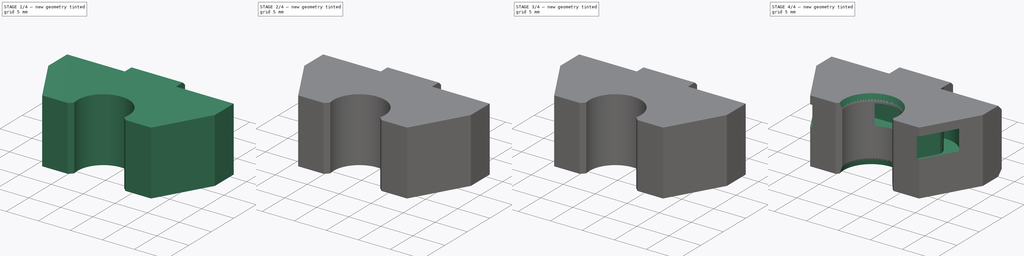
[diagram: build sequence overview — one tinted view per stage of 4, left to right]
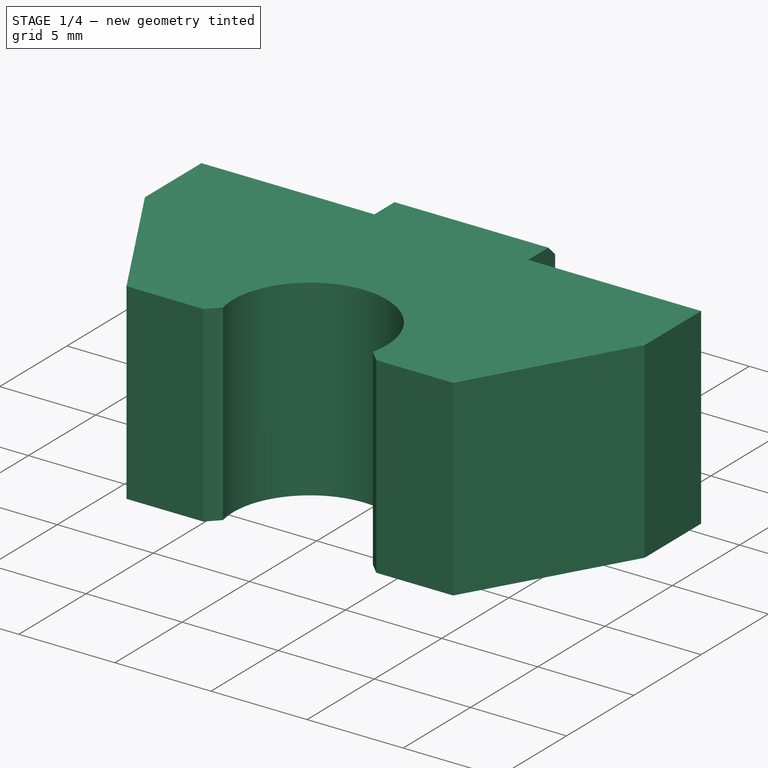
[diagram: stage 1 of 4 — iso view after this stage's code; geometry added in this stage tinted green]
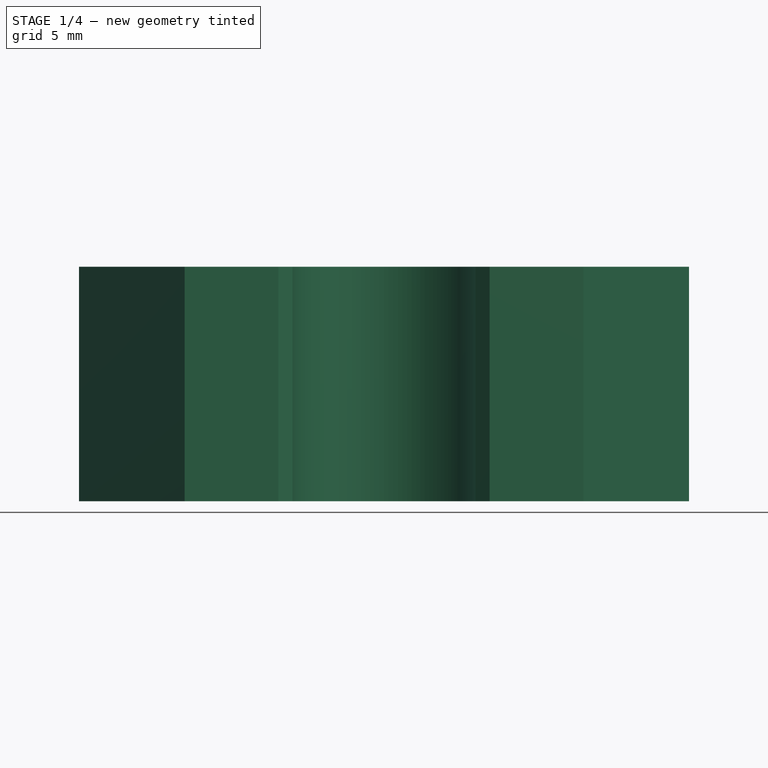
[diagram: stage 1 of 4 — front view after this stage's code; geometry added in this stage tinted green]
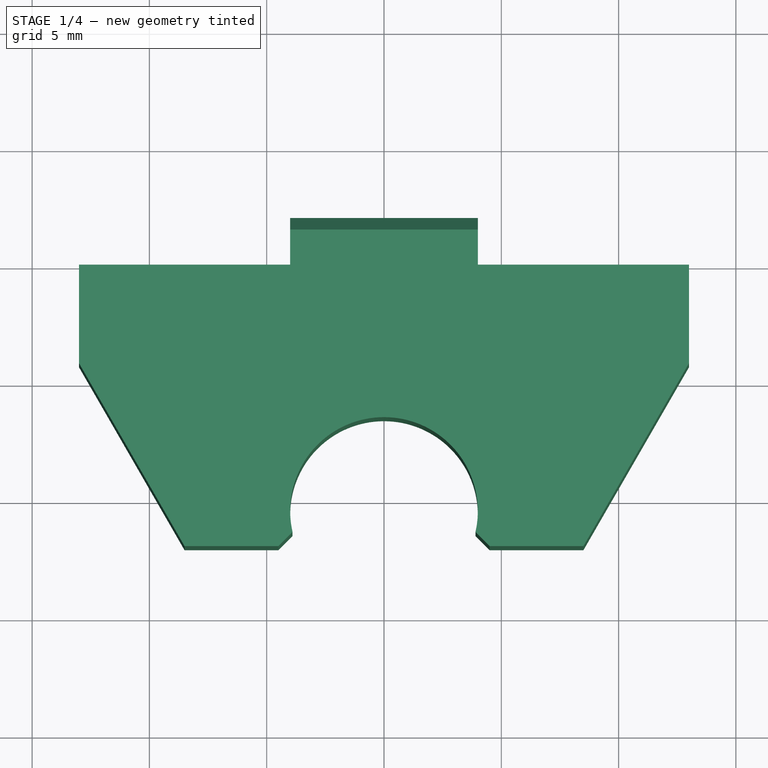
[diagram: stage 1 of 4 — top view after this stage's code; geometry added in this stage tinted green]
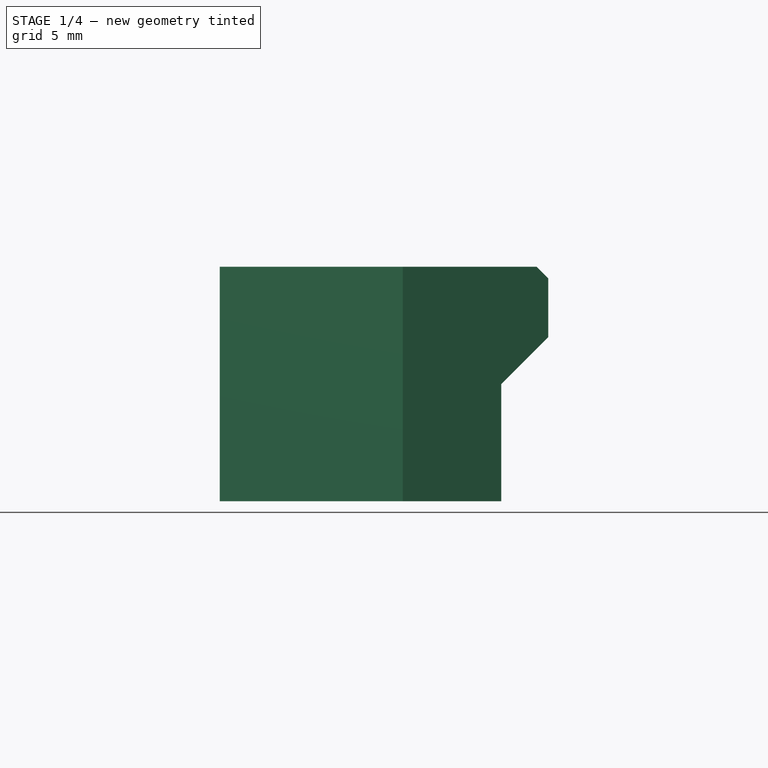
[diagram: stage 1 of 4 — right view after this stage's code; geometry added in this stage tinted green]
FCSTD DOCUMENT  (FreeCAD 0.22R38231 (Git))
Label: _Y-Rod-Holder
License: Creative Commons Attribution 4.0
LicenseURL: https://creativecommons.org/licenses/by/4.0/
objects: Sketcher::SketchObject×8, PartDesign::Pocket×7, PartDesign::Chamfer×4, PartDesign::Mirrored×2, PartDesign::Pad×1, PartDesign::Body×1
note: 49 computed .brp shape members not serialized (recipe doc carries the construction recipe); baked Part::Feature solids carry a one-line shape summary decoded from their .brp

FEATURE [Sketcher::SketchObject] Sketch
  AttachmentSupport = -> [XY_Plane]
  FullyConstrained = true
  MapMode = 5
  sketch-geometry (9):
    g0: LineSegment StartX=0 StartY=2 StartZ=0 EndX=2e-16 EndY=-6.5 EndZ=0
    g1: LineSegment StartX=-3.89792 StartY=-11.3979 StartZ=0 EndX=-4.5 EndY=-12 EndZ=0
    g2: LineSegment StartX=-4.5 StartY=-12 StartZ=0 EndX=-8.5 EndY=-12 EndZ=0
    g3: LineSegment StartX=-8.5 StartY=-12 StartZ=0 EndX=-13 EndY=-4.2 EndZ=0
    g4: LineSegment StartX=-13 StartY=-4.2 StartZ=0 EndX=-13 EndY=0 EndZ=0
    g5: LineSegment StartX=-13 StartY=0 StartZ=0 EndX=-4 EndY=0 EndZ=0
    g6: LineSegment StartX=-4 StartY=0 StartZ=0 EndX=-4 EndY=2 EndZ=0
    g7: LineSegment StartX=-4 StartY=2 StartZ=0 EndX=0 EndY=2 EndZ=0
    g8: ArcOfCircle CenterX=0 CenterY=-10.5 CenterZ=0 NormalX=0 NormalY=0 NormalZ=1 AngleXU=0 Radius=4 StartAngle=1.5708 EndAngle=3.368
  constraints (28):
    c: PointOnObject(g0,g-2)
    c: PointOnObject(g0,g-2)
    c: Coincident(g1,g2)
    c: Horizontal(g2)
    c: Coincident(g2,g3)
    c: Coincident(g3,g4)
    c: PointOnObject(g4,g-1)
    c: Vertical(g4)
    c: Coincident(g4,g5)
    c: PointOnObject(g5,g-1)
    c: Coincident(g5,g6)
    c: Vertical(g6)
    c: Coincident(g6,g7)
    c: Coincident(g7,g0)
    c: Horizontal(g7)
    c: DistanceX(g7,g7) = 4
    c: DistanceY(g4,g6) = 2
    c: DistanceX(g2,g2) = 4
    c: DistanceY(g2,g-1) = 12
    c: DistanceX(g2,g-1) = 8.5
    c: Radius(g8) = 4
    c: PointOnObject(g8,g-2)
    c: DistanceY(g8,g-1) = 10.5
    c: Coincident(g0,g8)
    c: Coincident(g1,g8)
    c: Angle(g1,g2) = 2.35619
    c: DistanceY(g4,g4) = 4.2
    c: DistanceX(g4,g-1) = 13
FEATURE [PartDesign::Pad] Pad
  Direction = (0,0,1)
  Length = 10
  Length2 = 10
  Profile = -> Sketch
  ReferenceAxis = -> Sketch [N_Axis]
  Refine = true
  Reversed = true
  Suppressed = false
  Type = 0
FEATURE [Sketcher::SketchObject] Sketch001
  AttachmentSupport = -> [YZ_Plane]
  FullyConstrained = true
  MapMode = 5
  Placement = pos=(0,0,0) rot=(0.57735,0.57735,0.57735;2.0944rad)
  sketch-geometry (7):
    g0: LineSegment StartX=4 StartY=1 StartZ=0 EndX=0.5 EndY=1 EndZ=0
    g1: LineSegment StartX=0.5 StartY=1 StartZ=0 EndX=3 EndY=-1.5 EndZ=0
    g2: LineSegment StartX=3 StartY=-1.5 StartZ=0 EndX=3 EndY=-2 EndZ=0
    g3: LineSegment StartX=3 StartY=-2 StartZ=0 EndX=0 EndY=-5 EndZ=0
    g4: LineSegment StartX=0 StartY=-5 StartZ=0 EndX=0 EndY=-11 EndZ=0
    g5: LineSegment StartX=0 StartY=-11 StartZ=0 EndX=4 EndY=-11 EndZ=0
    g6: LineSegment StartX=4 StartY=-11 StartZ=0 EndX=4 EndY=1 EndZ=0
  constraints (21):
    c: Horizontal(g0)
    c: Coincident(g0,g1)
    c: Coincident(g1,g2)
    c: Vertical(g2)
    c: Coincident(g2,g3)
    c: PointOnObject(g3,g-2)
    c: Coincident(g3,g4)
    c: PointOnObject(g4,g-2)
    c: Coincident(g4,g5)
    c: Horizontal(g5)
    c: Coincident(g5,g6)
    c: Coincident(g6,g0)
    c: Vertical(g6)
    c: DistanceX(g-1,g0) = 4
    c: DistanceX(g-1,g1) = 3
    c: DistanceY(g-1,g0) = 1
    c: Angle(g1,g0) = 0.785398
    c: DistanceX(g0,g0) = 3.5
    c: Perpendicular(g3,g1)
    c: DistanceY(g2,g2) = 0.5
    c: DistanceY(g6,g6) = 12
FEATURE [Sketcher::SketchObject] Sketch002
  AttachmentOffset = pos=(0,0,-10) rot=(0,0,1;0rad)
  AttachmentSupport = -> [XY_Plane]
  FullyConstrained = true
  MapMode = 5
  Placement = pos=(0,0,-10) rot=(0,0,1;0rad)
  sketch-geometry (1):
    g0: Circle CenterX=-5.5 CenterY=-3.5 CenterZ=0 NormalX=0 NormalY=0 NormalZ=1 AngleXU=0 Radius=1.55
  constraints (3):
    c: Diameter(g0) = 3.1
    c: DistanceX(g0,g-1) = 5.5
    c: DistanceY(g0,g-1) = 3.5
FEATURE [PartDesign::Mirrored] Mirrored
  BaseFeature = -> Pad
  MirrorPlane = -> Sketch [V_Axis]
  Originals = -> [Pad]
  Refine = true
  Suppressed = false
  TransformMode = 0
FEATURE [PartDesign::Pocket] Pocket
  BaseFeature = -> Mirrored
  Direction = (-1,0,0)
  Length = 5
  Length2 = 5
  Midplane = true
  Profile = -> Sketch001
  ReferenceAxis = -> Sketch001 [N_Axis]
  Refine = true
  Suppressed = false
  Type = 1
FEATURE [PartDesign::Pocket] Pocket001
  BaseFeature = -> Pocket
  Direction = (0,0,-1)
  Length = 7
  Length2 = 5
  Profile = -> Sketch002
  ReferenceAxis = -> Sketch002 [N_Axis]
  Refine = true
  Reversed = true
  Suppressed = false
  Type = 0
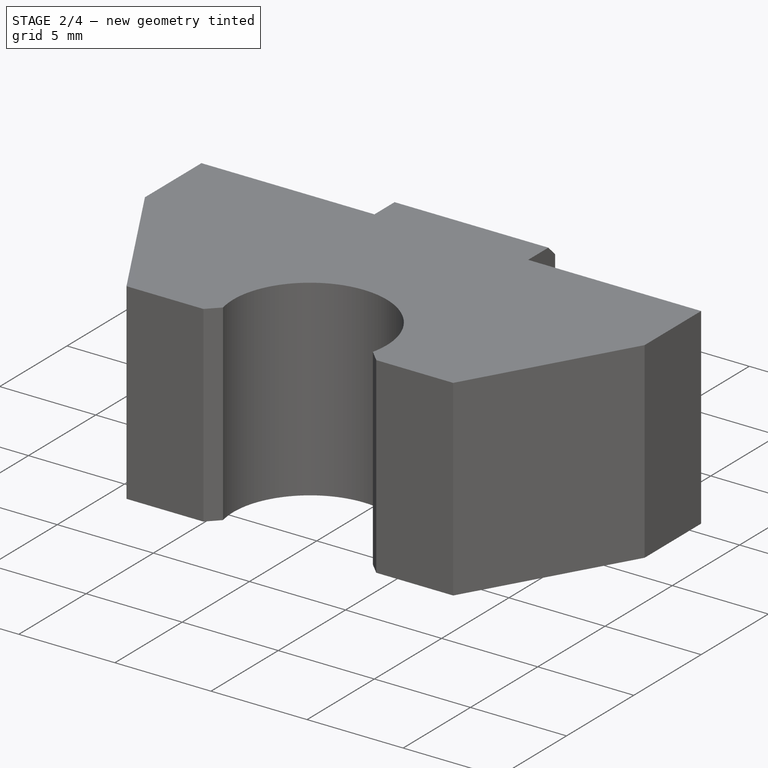
[diagram: stage 2 of 4 — iso view after this stage's code; geometry added in this stage tinted green]
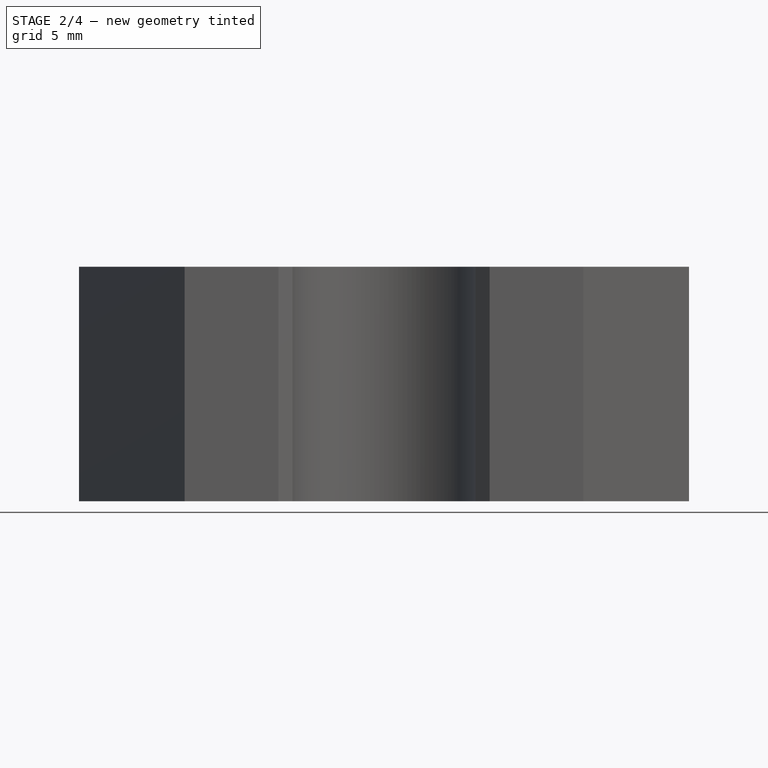
[diagram: stage 2 of 4 — front view after this stage's code; geometry added in this stage tinted green]
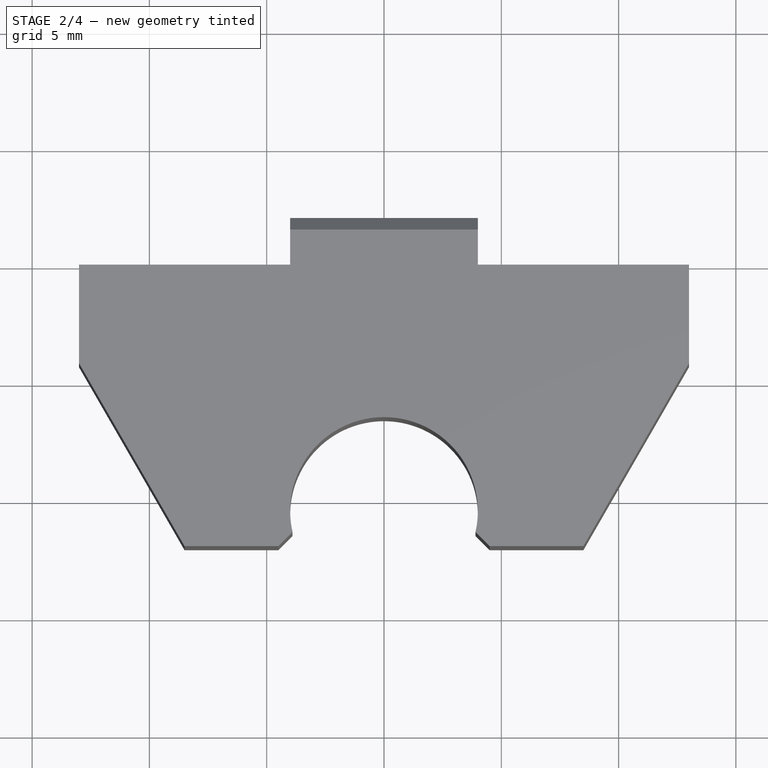
[diagram: stage 2 of 4 — top view after this stage's code; geometry added in this stage tinted green]
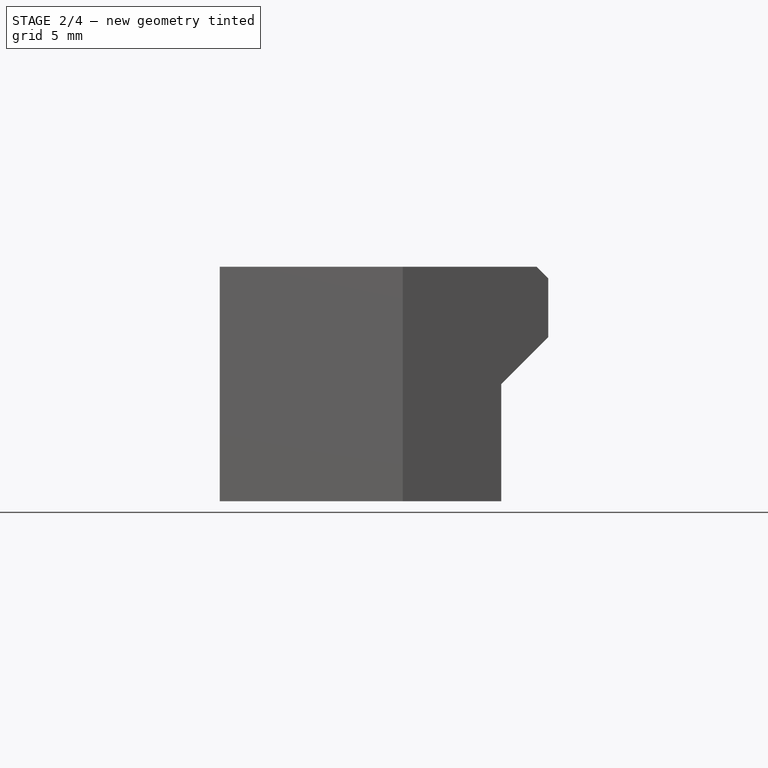
[diagram: stage 2 of 4 — right view after this stage's code; geometry added in this stage tinted green]
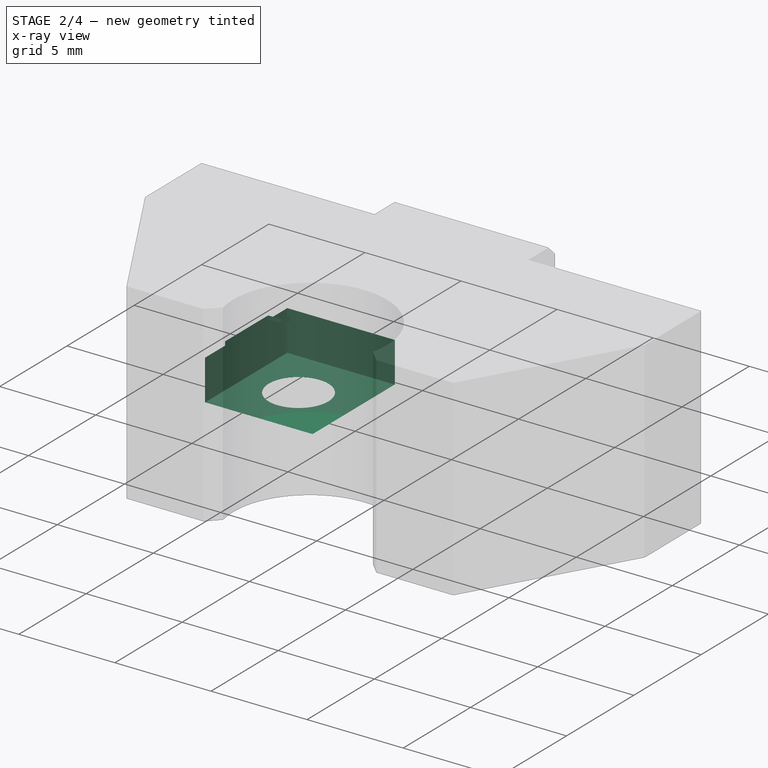
[diagram: stage 2 of 4 — x-ray composite at the iso view; earlier geometry ghosted, this stage's added geometry solid]
FEATURE [Sketcher::SketchObject] Sketch003
  AttachmentOffset = pos=(0,0,-4.9) rot=(0,0,1;0rad)
  AttachmentSupport = -> [XY_Plane]
  ExternalGeometry = -> [Sketch002]
  FullyConstrained = true
  MapMode = 5
  Placement = pos=(0,0,-4.9) rot=(0,0,1;0rad)
  sketch-geometry (5):
    g0: LineSegment StartX=-3.9 StartY=-5.1 StartZ=0 EndX=-3.9 EndY=-1.9 EndZ=0
    g1: LineSegment StartX=-3.9 StartY=-1.9 StartZ=0 EndX=-7.1 EndY=-1.9 EndZ=0
    g2: LineSegment StartX=-7.1 StartY=-1.9 StartZ=0 EndX=-7.1 EndY=-5.1 EndZ=0
    g3: LineSegment StartX=-7.1 StartY=-5.1 StartZ=0 EndX=-3.9 EndY=-5.1 EndZ=0
    g4: GeomPoint X=-5.5 Y=-3.5 Z=0
  constraints (12):
    c: Coincident(g0,g1)
    c: Coincident(g1,g2)
    c: Coincident(g2,g3)
    c: Coincident(g3,g0)
    c: Vertical(g0)
    c: Vertical(g2)
    c: Horizontal(g1)
    c: Horizontal(g3)
    c: Symmetric(g2,g0,g4)
    c: Coincident(g4,g-3)
    c: DistanceX(g1,g1) = 3.2
    c: Equal(g1,g2)
FEATURE [PartDesign::Pocket] Pocket002
  BaseFeature = -> Pocket001
  Direction = (0,0,-1)
  Length = 1
  Length2 = 5
  Profile = -> Sketch003
  ReferenceAxis = -> Sketch003 [N_Axis]
  Refine = true
  Suppressed = false
  Type = 0
FEATURE [Sketcher::SketchObject] Sketch004
  AttachmentOffset = pos=(0,0,-5.35) rot=(0,0,1;0rad)
  AttachmentSupport = -> [XY_Plane]
  ExternalGeometry = -> [Sketch002]
  FullyConstrained = true
  MapMode = 5
  Placement = pos=(0,0,-5.35) rot=(0,0,1;0rad)
  sketch-geometry (5):
    g0: GeomPoint X=-5.5 Y=-3.5 Z=0
    g1: LineSegment StartX=-8.2 StartY=-0.48 StartZ=0 EndX=-8.2 EndY=-6.6 EndZ=0
    g2: LineSegment StartX=-8.2 StartY=-6.6 StartZ=0 EndX=-2.6 EndY=-6.6 EndZ=0
    g3: LineSegment StartX=-2.6 StartY=-6.6 StartZ=0 EndX=-2.6 EndY=-0.48 EndZ=0
    g4: LineSegment StartX=-2.6 StartY=-0.48 StartZ=0 EndX=-8.2 EndY=-0.48 EndZ=0
  constraints (13):
    c: Coincident(g0,g-3)
    c: Coincident(g1,g2)
    c: Coincident(g2,g3)
    c: Coincident(g3,g4)
    c: Coincident(g4,g1)
    c: Vertical(g1)
    c: Vertical(g3)
    c: Horizontal(g2)
    c: Horizontal(g4)
    c: DistanceX(g1,g-1) = 8.2
    c: DistanceY(g2,g-1) = 6.6
    c: DistanceY(g3,g-1) = 0.48
    c: DistanceX(g4,g4) = 5.6
FEATURE [PartDesign::Pocket] Pocket003
  BaseFeature = -> Pocket002
  Direction = (0,0,-1)
  Length = 2.1
  Length2 = 5
  Profile = -> Sketch004
  ReferenceAxis = -> Sketch004 [N_Axis]
  Refine = true
  Suppressed = false
  Type = 0
FEATURE [Sketcher::SketchObject] Sketch005
  AttachmentOffset = pos=(0,0,-5.15) rot=(0,0,1;0rad)
  AttachmentSupport = -> [XY_Plane]
  ExternalGeometry = -> [Sketch002]
  FullyConstrained = true
  MapMode = 5
  Placement = pos=(0,0,-5.15) rot=(0,0,1;0rad)
  sketch-geometry (4):
    g0: LineSegment StartX=-8.2 StartY=-1.9 StartZ=0 EndX=-8.2 EndY=-5.1 EndZ=0
    g1: LineSegment StartX=-8.2 StartY=-5.1 StartZ=0 EndX=-2.6 EndY=-5.1 EndZ=0
    g2: LineSegment StartX=-2.6 StartY=-5.1 StartZ=0 EndX=-2.6 EndY=-1.9 EndZ=0
    g3: LineSegment StartX=-2.6 StartY=-1.9 StartZ=0 EndX=-8.2 EndY=-1.9 EndZ=0
  constraints (12):
    c: Coincident(g0,g1)
    c: Coincident(g1,g2)
    c: Coincident(g2,g3)
    c: Coincident(g3,g0)
    c: Vertical(g0)
    c: Vertical(g2)
    c: Horizontal(g1)
    c: Horizontal(g3)
    c: DistanceX(g2,g-1) = 2.6
    c: DistanceY(g0,g0) = 3.2
    c: DistanceX(g1,g1) = 5.6
    c: DistanceY(g2,g-1) = 1.9
FEATURE [PartDesign::Pocket] Pocket004
  BaseFeature = -> Pocket003
  Direction = (0,0,-1)
  Length = 1
  Length2 = 5
  Profile = -> Sketch005
  ReferenceAxis = -> Sketch005 [N_Axis]
  Refine = true
  Suppressed = false
  Type = 0
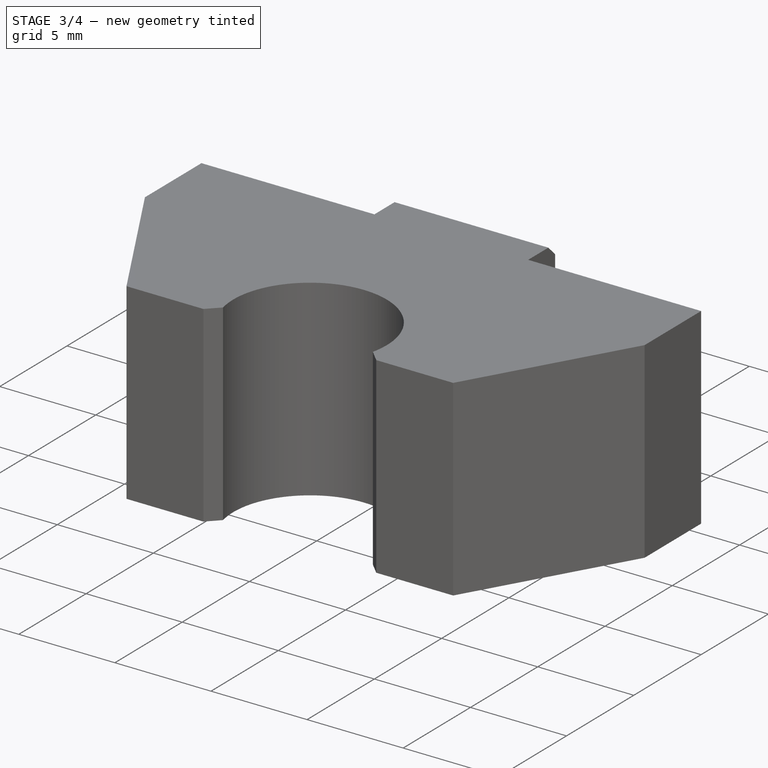
[diagram: stage 3 of 4 — iso view after this stage's code; geometry added in this stage tinted green]
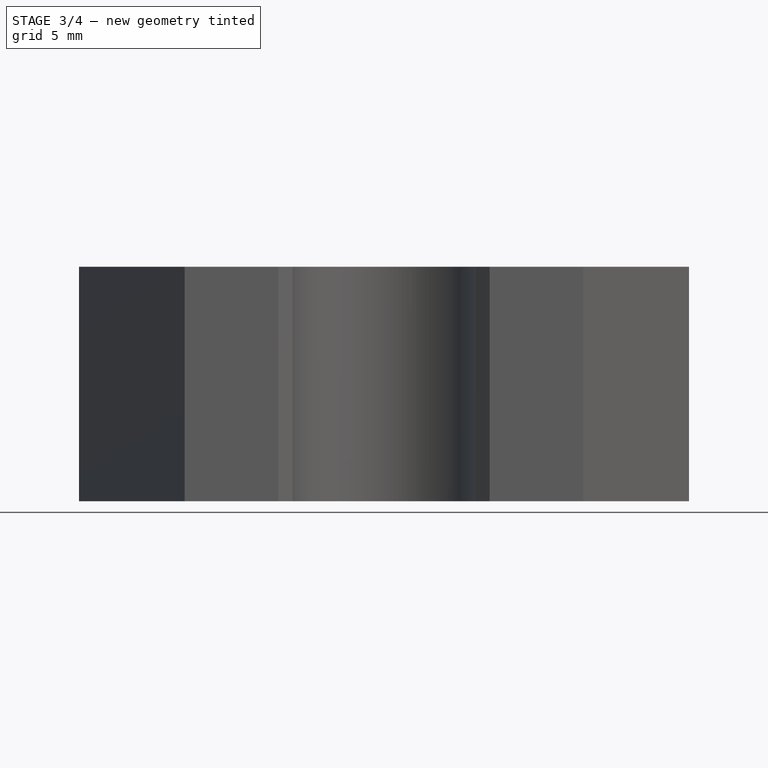
[diagram: stage 3 of 4 — front view after this stage's code; geometry added in this stage tinted green]
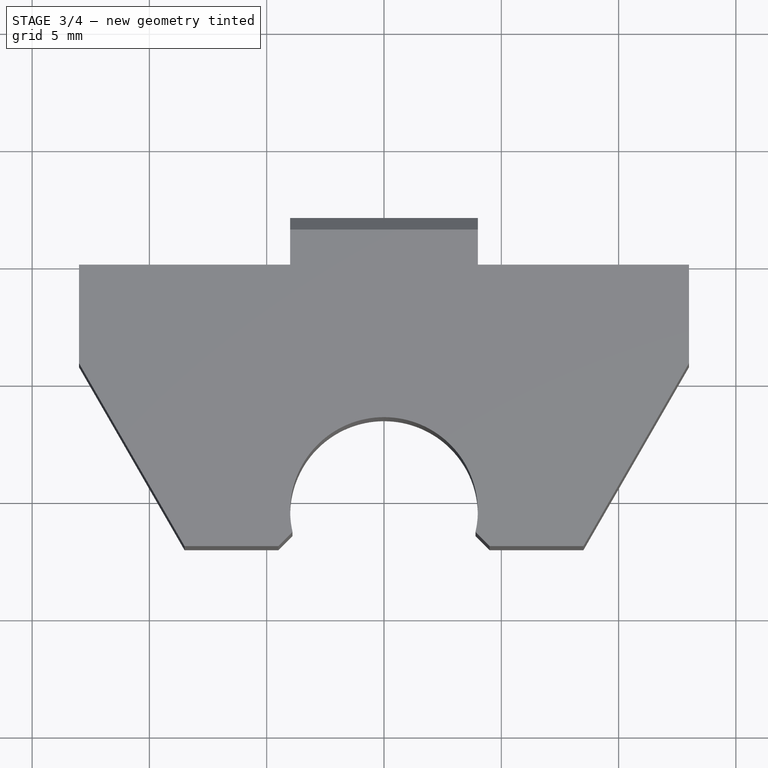
[diagram: stage 3 of 4 — top view after this stage's code; geometry added in this stage tinted green]
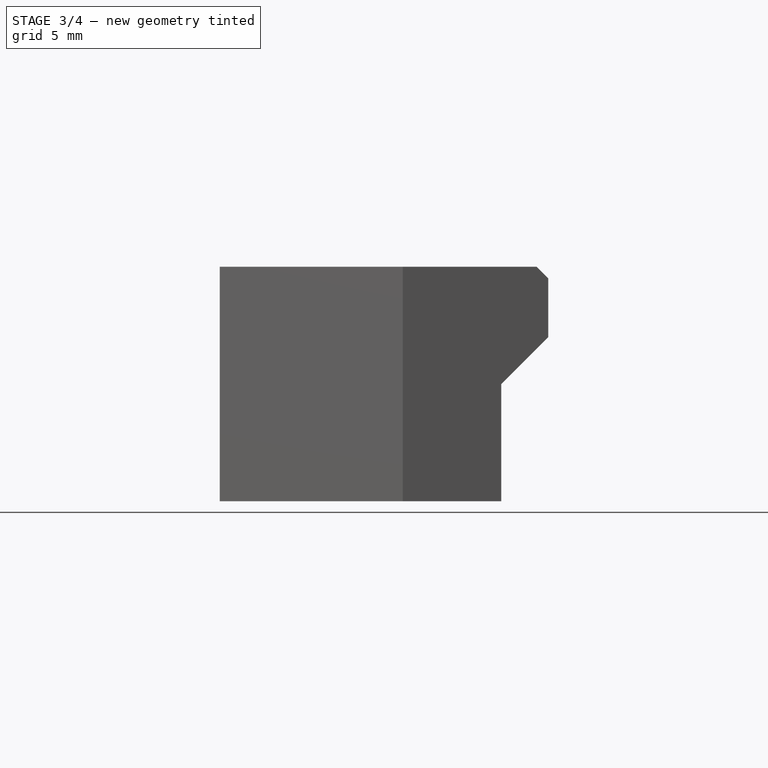
[diagram: stage 3 of 4 — right view after this stage's code; geometry added in this stage tinted green]
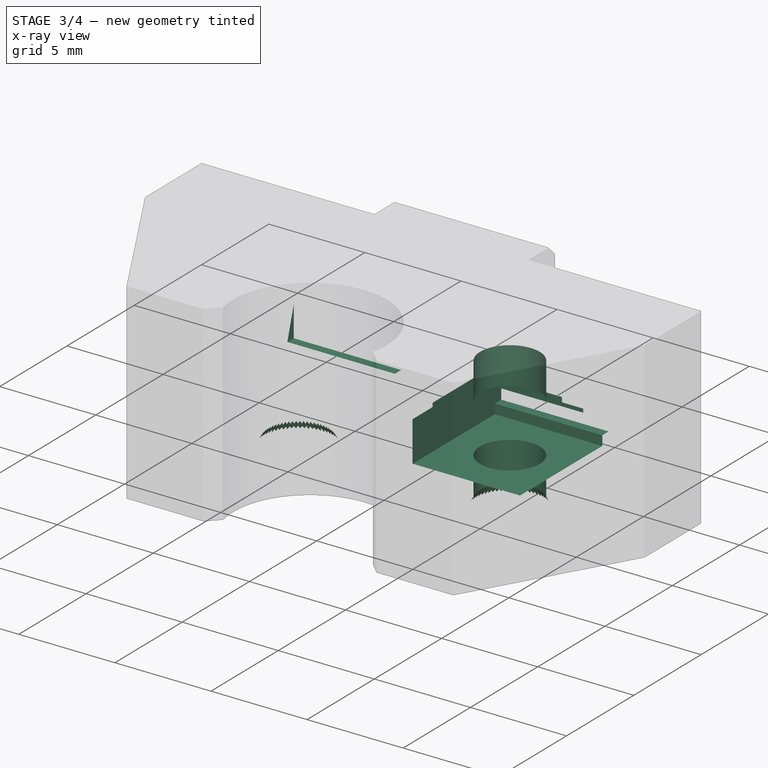
[diagram: stage 3 of 4 — x-ray composite at the iso view; earlier geometry ghosted, this stage's added geometry solid]
FEATURE [PartDesign::Chamfer] Chamfer
  Angle = 45
  Base = -> Pocket004 [Edge31]
  BaseFeature = -> Pocket004
  ChamferType = 1
  FlipDirection = false
  Refine = true
  Size = 0.3
  Size2 = 0.5
  SupportTransform = false
  Suppressed = false
  UseAllEdges = false
FEATURE [PartDesign::Mirrored] Mirrored001
  BaseFeature = -> Chamfer
  MirrorPlane = -> Sketch002 [V_Axis]
  Originals = -> [Pocket001,Pocket002,Pocket003,Pocket004,Chamfer]
  Refine = true
  Suppressed = false
  TransformMode = 0
FEATURE [Sketcher::SketchObject] Sketch006
  AttachmentSupport = -> [XZ_Plane]
  FullyConstrained = true
  MapMode = 5
  Placement = pos=(0,0,0) rot=(1,0,0;1.5708rad)
  sketch-geometry (8):
    g0: LineSegment StartX=-8.2 StartY=-5.35 StartZ=0 EndX=-8.2 EndY=-6.95 EndZ=0
    g1: LineSegment StartX=-8.2 StartY=-6.95 StartZ=0 EndX=-2.6 EndY=-6.95 EndZ=0
    g2: LineSegment StartX=-2.6 StartY=-6.95 StartZ=0 EndX=-2.6 EndY=-5.35 EndZ=0
    g3: LineSegment StartX=-2.6 StartY=-5.35 StartZ=0 EndX=-8.2 EndY=-5.35 EndZ=0
    g4: LineSegment StartX=2.6 StartY=-5.35 StartZ=0 EndX=2.6 EndY=-6.95 EndZ=0
    g5: LineSegment StartX=2.6 StartY=-6.95 StartZ=0 EndX=8.2 EndY=-6.95 EndZ=0
    g6: LineSegment StartX=8.2 StartY=-6.95 StartZ=0 EndX=8.2 EndY=-5.35 EndZ=0
    g7: LineSegment StartX=8.2 StartY=-5.35 StartZ=0 EndX=2.6 EndY=-5.35 EndZ=0
  constraints (23):
    c: Coincident(g0,g1)
    c: Coincident(g1,g2)
    c: Coincident(g2,g3)
    c: Coincident(g3,g0)
    c: Vertical(g0)
    c: Vertical(g2)
    c: Horizontal(g1)
    c: Horizontal(g3)
    c: Coincident(g4,g5)
    c: Coincident(g5,g6)
    c: Coincident(g6,g7)
    c: Coincident(g7,g4)
    c: Vertical(g4)
    c: Vertical(g6)
    c: Horizontal(g5)
    c: Horizontal(g7)
    c: Symmetric(g1,g4,g-2)
    c: DistanceX(g2,g4) = 5.2
    c: DistanceY(g0,g-1) = 5.35
    c: DistanceX(g1,g1) = 5.6
    c: Equal(g3,g7)
    c: Equal(g2,g4)
    c: DistanceY(g0,g0) = 1.6
FEATURE [PartDesign::Pocket] Pocket005
  BaseFeature = -> Mirrored001
  Direction = (0,1,-2e-16)
  Length = 2
  Length2 = 5
  Profile = -> Sketch006
  ReferenceAxis = -> Sketch006 [N_Axis]
  Refine = true
  Reversed = true
  Suppressed = false
  Type = 0
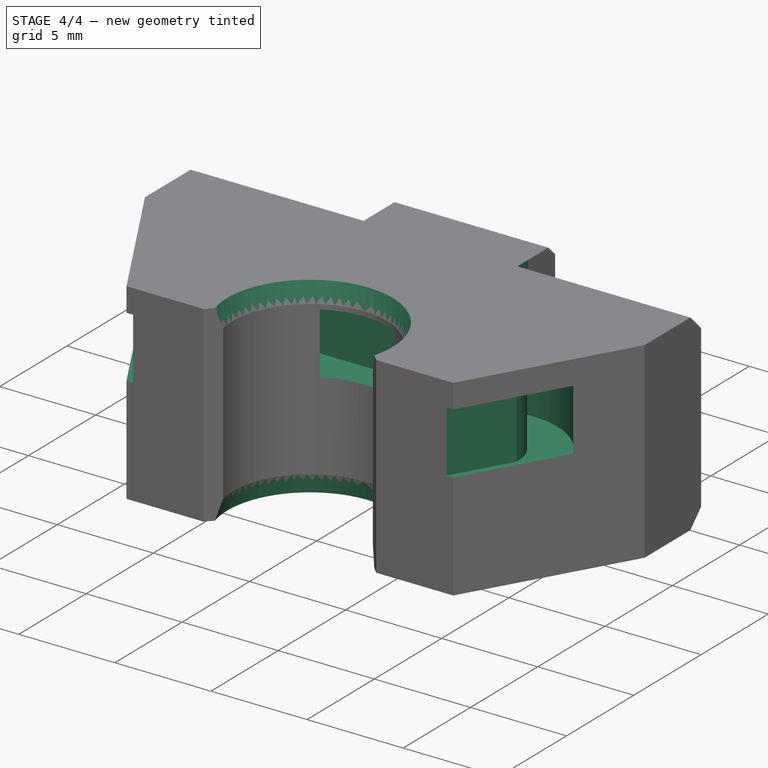
[diagram: stage 4 of 4 — iso view after this stage's code; geometry added in this stage tinted green]
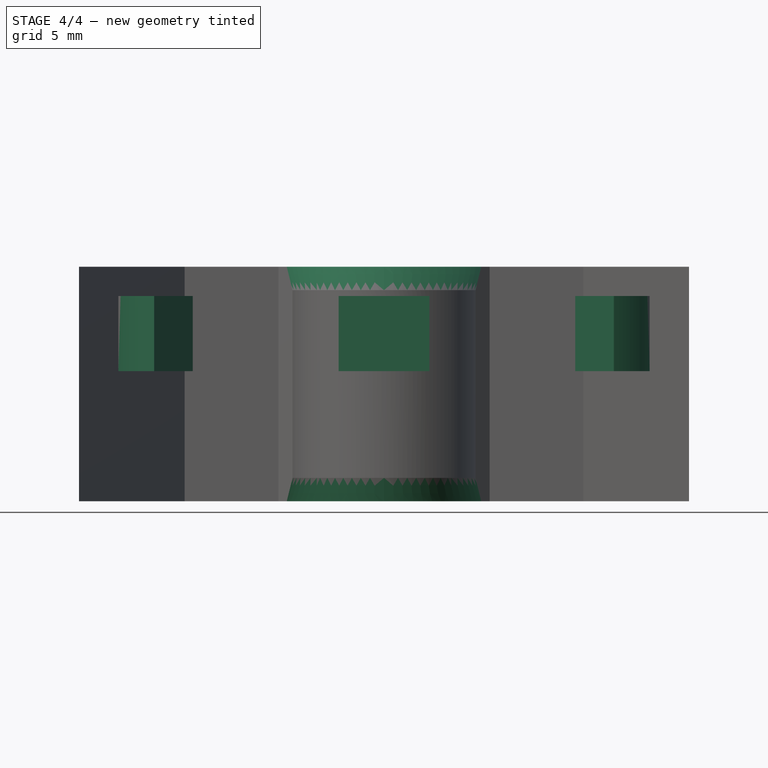
[diagram: stage 4 of 4 — front view after this stage's code; geometry added in this stage tinted green]
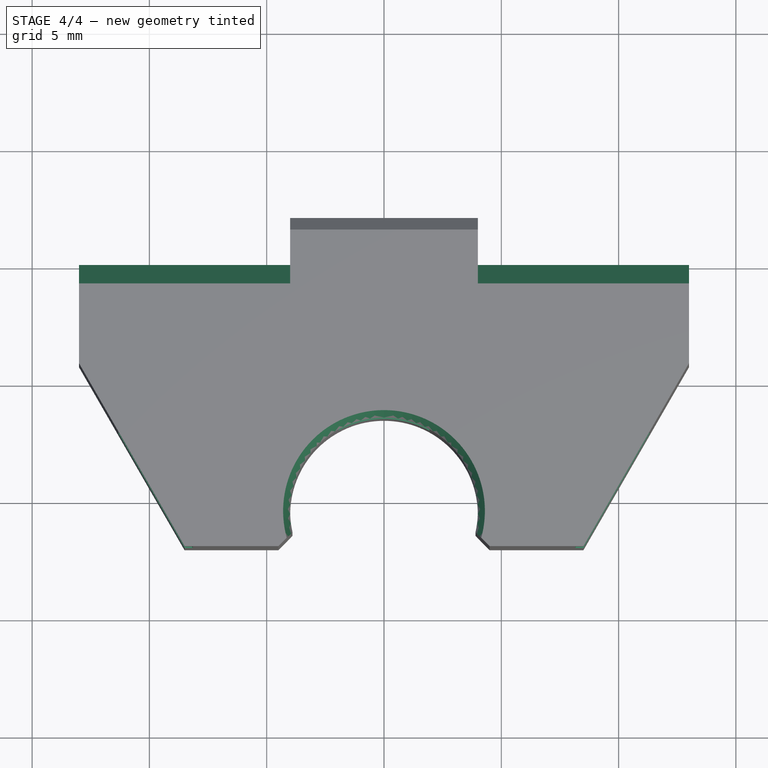
[diagram: stage 4 of 4 — top view after this stage's code; geometry added in this stage tinted green]
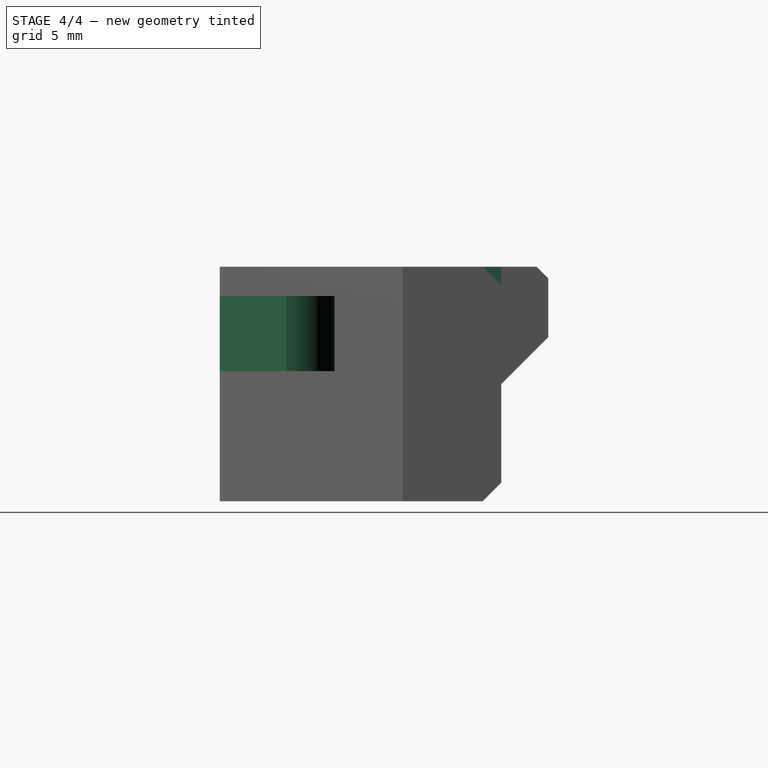
[diagram: stage 4 of 4 — right view after this stage's code; geometry added in this stage tinted green]
FEATURE [PartDesign::Chamfer] Chamfer001
  Angle = 45
  Base = -> Pocket005 [Edge54]
  BaseFeature = -> Pocket005
  ChamferType = 1
  FlipDirection = false
  Refine = true
  Size = 0.3
  Size2 = 1
  SupportTransform = false
  Suppressed = false
  UseAllEdges = false
FEATURE [PartDesign::Chamfer] Chamfer002
  Angle = 45
  Base = -> Chamfer001 [Edge55]
  BaseFeature = -> Chamfer001
  ChamferType = 1
  FlipDirection = false
  Refine = true
  Size = 1
  Size2 = 0.3
  SupportTransform = false
  Suppressed = false
  UseAllEdges = false
FEATURE [Sketcher::SketchObject] Sketch007
  AttachmentOffset = pos=(0,0,-1.25) rot=(0,0,1;0rad)
  AttachmentSupport = -> [XY_Plane]
  FullyConstrained = true
  MapMode = 5
  Placement = pos=(0,0,-1.25) rot=(0,0,1;0rad)
  sketch-geometry (12):
    g0: LineSegment StartX=-7.8 StartY=-5 StartZ=0 EndX=7.8 EndY=-5 EndZ=0
    g1: LineSegment StartX=-7.8 StartY=-7 StartZ=0 EndX=7.8 EndY=-7 EndZ=0
    g2: ArcOfCircle CenterX=-7.8 CenterY=-9 CenterZ=0 NormalX=0 NormalY=0 NormalZ=1 AngleXU=0 Radius=2 StartAngle=1.5708 EndAngle=3.21774
    g3: ArcOfCircle CenterX=-7.8 CenterY=-9 CenterZ=0 NormalX=0 NormalY=0 NormalZ=1 AngleXU=0 Radius=4 StartAngle=1.5708 EndAngle=3.14159
    g4: LineSegment StartX=-9.7942 StartY=-9.15216 StartZ=0 EndX=-8.15 EndY=-12 EndZ=0
    g5: LineSegment StartX=-8.15 StartY=-12 StartZ=0 EndX=-11.8 EndY=-12 EndZ=0
    g6: LineSegment StartX=-11.8 StartY=-12 StartZ=0 EndX=-11.8 EndY=-9 EndZ=0
    g7: ArcOfCircle CenterX=7.8 CenterY=-9 CenterZ=0 NormalX=0 NormalY=0 NormalZ=1 AngleXU=0 Radius=2 StartAngle=6.20703 EndAngle=7.85398
    g8: ArcOfCircle CenterX=7.8 CenterY=-9 CenterZ=0 NormalX=0 NormalY=0 NormalZ=1 AngleXU=0 Radius=4 StartAngle=0 EndAngle=1.5708
    g9: LineSegment StartX=9.7942 StartY=-9.15216 StartZ=0 EndX=8.15 EndY=-12 EndZ=0
    g10: LineSegment StartX=8.15 StartY=-12 StartZ=0 EndX=11.8 EndY=-12 EndZ=0
    g11: LineSegment StartX=11.8 StartY=-12 StartZ=0 EndX=11.8 EndY=-9 EndZ=0
  constraints (31):
    c: Horizontal(g0)
    c: Horizontal(g1)
    c: Coincident(g2,g3)
    c: DistanceX(g2,g-1) = 7.8
    c: DistanceY(g2,g-1) = 9
    c: Tangent(g3,g0) = 1.5708
    c: Tangent(g2,g1) = 1.5708
    c: Coincident(g4,g5)
    c: Horizontal(g5)
    c: Coincident(g5,g6)
    c: Vertical(g6)
    c: Radius(g3) = 4
    c: Radius(g2) = 2
    c: Angle(g4,g5) = 1.0472
    c: Coincident(g2,g4)
    c: DistanceY(g5,g-1) = 12
    c: DistanceX(g4,g-1) = 8.15
    c: Tangent(g6,g3) = 1.5708
    c: Coincident(g8,g7)
    c: Coincident(g7,g9)
    c: Coincident(g9,g10)
    c: Horizontal(g10)
    c: Coincident(g10,g11)
    c: Tangent(g11,g8) = -1.5708
    c: Symmetric(g2,g7,g-2)
    c: Tangent(g7,g1) = 1.5708
    c: Tangent(g8,g0) = 1.5708
    c: Vertical(g11)
    c: Horizontal(g4,g9)
    c: Angle(g10,g9) = 1.0472
    c: Horizontal(g2,g7)
FEATURE [PartDesign::Pocket] Pocket006
  BaseFeature = -> Chamfer002
  Direction = (0,0,-1)
  Length = 3.2
  Length2 = 5
  Profile = -> Sketch007
  ReferenceAxis = -> Sketch007 [N_Axis]
  Refine = true
  Suppressed = false
  Type = 0
FEATURE [PartDesign::Chamfer] Chamfer003
  Angle = 45
  Base = -> Pocket006 [Edge39,Edge26,Edge31]
  BaseFeature = -> Pocket006
  ChamferType = 0
  FlipDirection = false
  Refine = true
  Size = 0.8
  Size2 = 1
  SupportTransform = false
  Suppressed = false
  UseAllEdges = false
FEATURE [PartDesign::Body] Body  label="Y-Rod-Holder"
  AllowCompound = false
  Group = -> [Sketch,Pad,Sketch001,Mirrored,Pocket,Sketch002,Pocket001,Sketch003,Pocket002,Sketch004,Pocket003,Sketch005,Pocket004,Chamfer,Mirrored001,Sketch006,Pocket005,Chamfer001,Chamfer002,Sketch007,Pocket006,Chamfer003]
  Origin = -> Origin
  Tip = -> Chamfer003
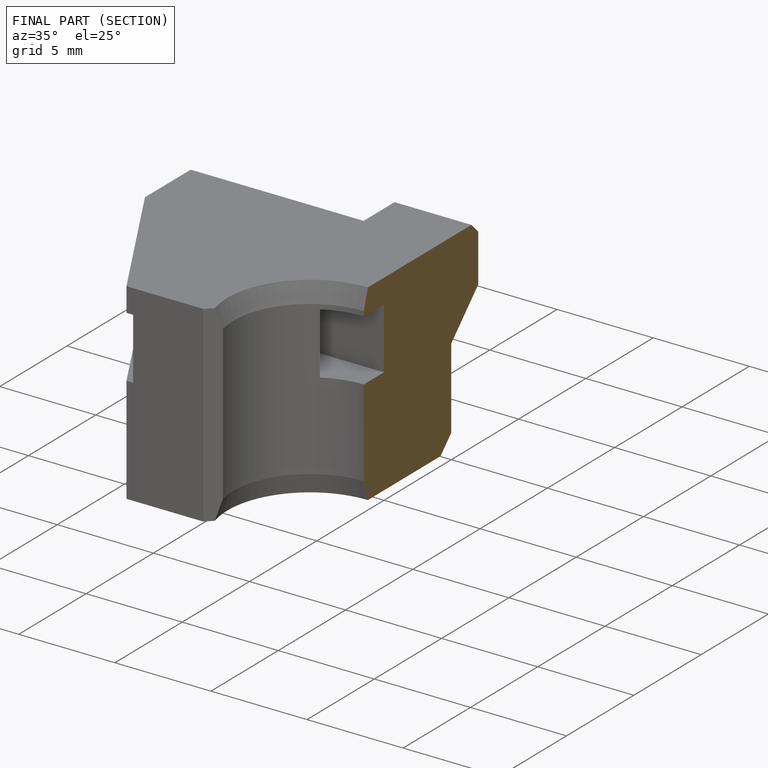
[diagram: finished part — half-section view (interior)]
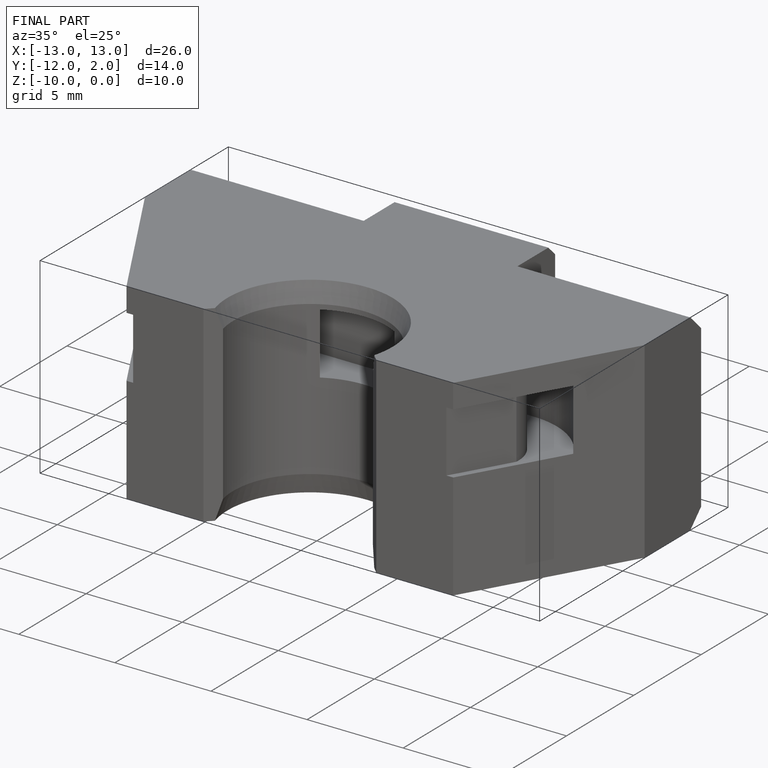
[diagram: finished part — iso view with bounding-box wireframe]
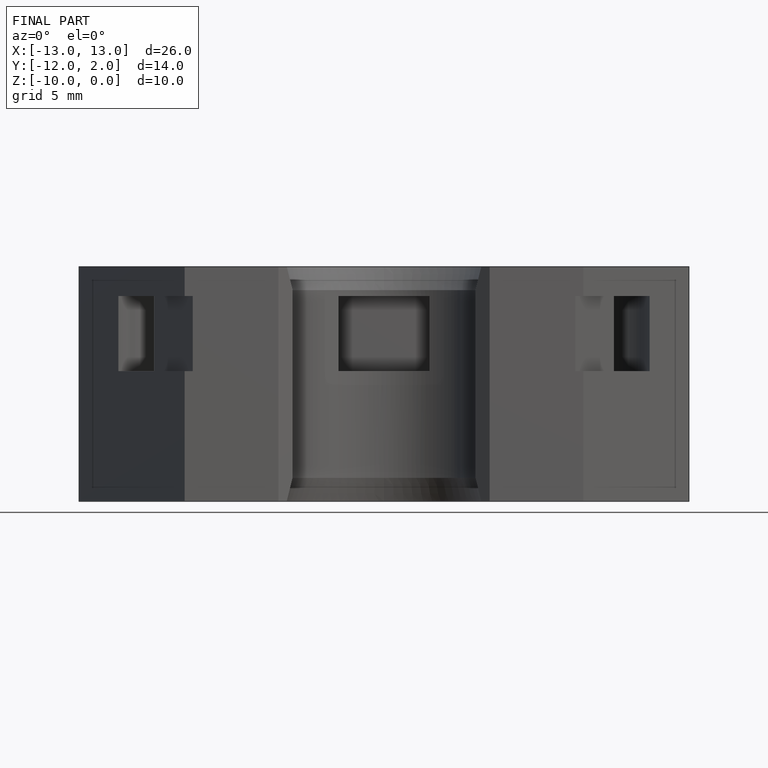
[diagram: finished part — front view with bounding-box wireframe]
